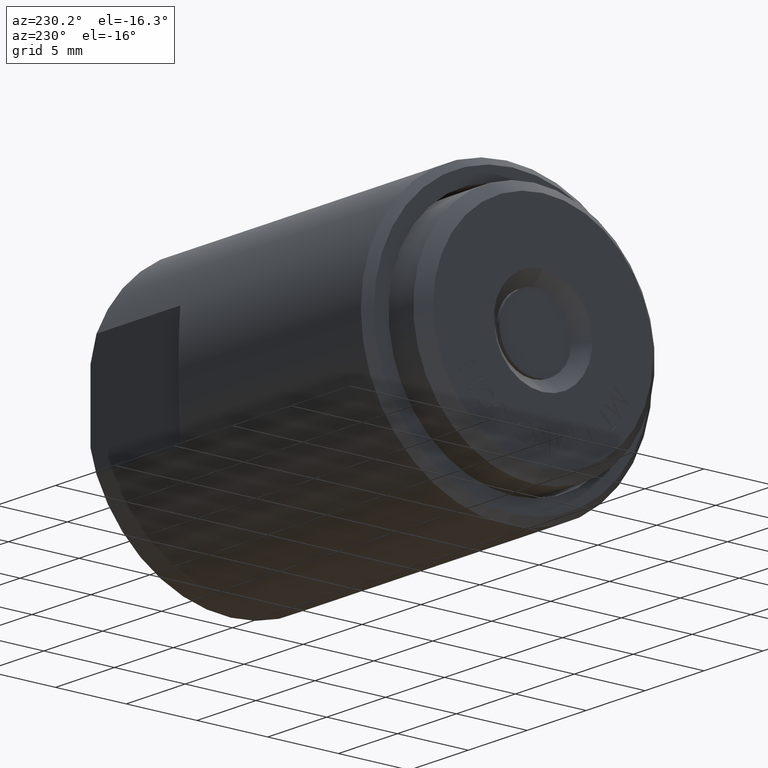
[diagram: clean part render]
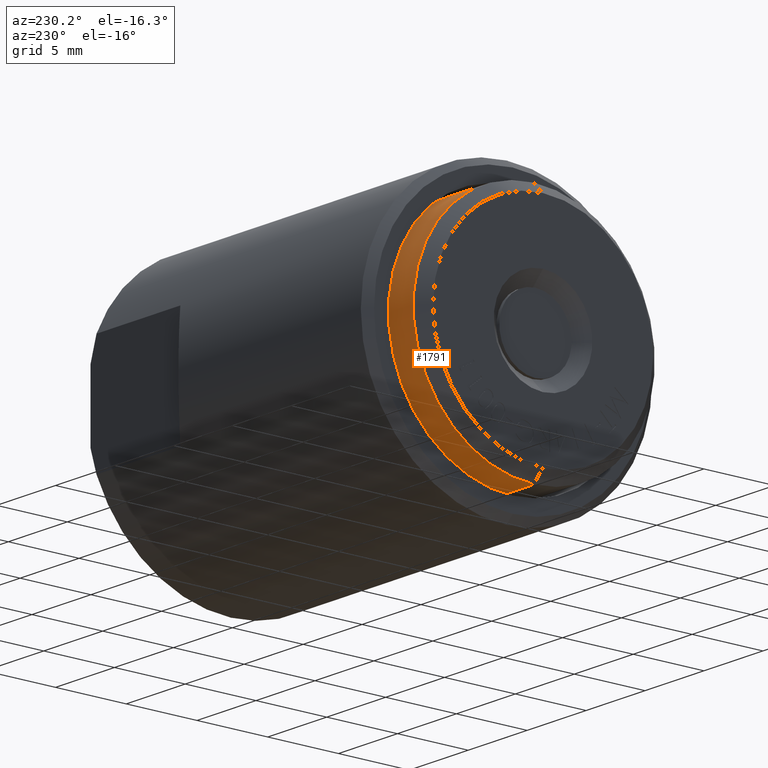
[diagram: same view with one face highlighted and labeled with its STEP entity id]
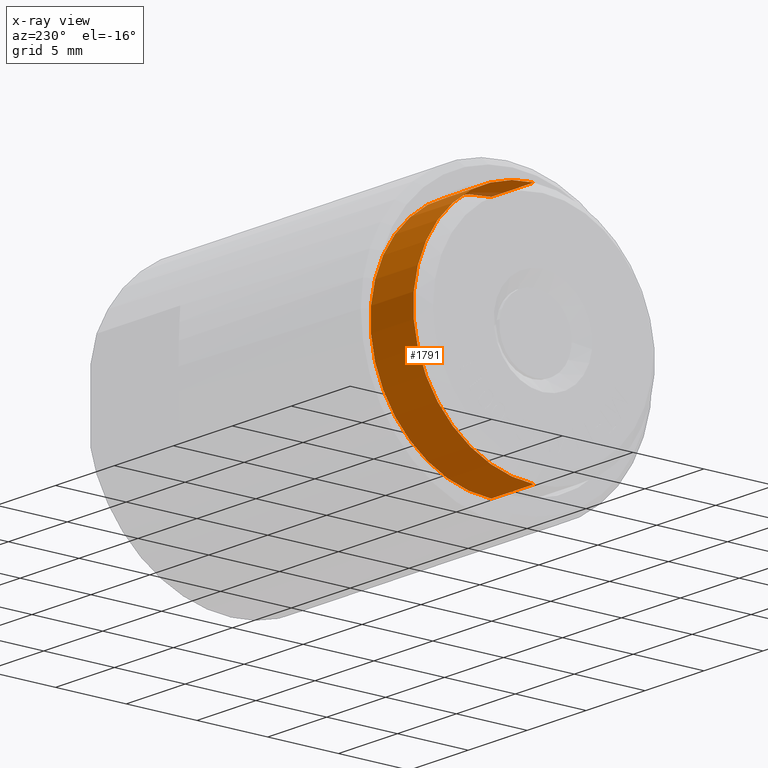
[diagram: x-ray of the same camera — body ghosted, the highlighted face saturated]
A machine part, auxiliary view. The second image highlights one B-rep face of the part: STEP entity #1791.
The next image is the same camera in x-ray: the body ghosted, the highlighted face saturated — about 1% of this face is hidden behind the body in this view.
In plain terms, the highlighted cylindrical surface (partial cylindrical patch) has radius 8.5344 mm, axis along (-1, -0, -0).
Its self-contained STEP definition (entity closure, byte-faithful):
#260 = EDGE_CURVE ( 'NONE', #10603, #6384, #1472, .T. ) ;
#417 = ORIENTED_EDGE ( 'NONE', *, *, #2439, .F. ) ;
#451 = AXIS2_PLACEMENT_3D ( 'NONE', #3066, #7274, #8292 ) ;
#753 = CARTESIAN_POINT ( 'NONE',  ( 0.0000000000000000000, 4.114813245135106909E-17, -0.3360000000000000764 ) ) ;
#918 = CARTESIAN_POINT ( 'NONE',  ( -0.07699999999999997125, 0.0000000000000000000, 0.3360000000000000764 ) ) ;
#1472 = LINE ( 'NONE', #9678, #3694 ) ;
#1791 = ADVANCED_FACE ( 'NONE', ( #10249 ), #10475, .T. ) ;
#2439 = EDGE_CURVE ( 'NONE', #6384, #7009, #9422, .T. ) ;
#3066 = CARTESIAN_POINT ( 'NONE',  ( 0.0000000000000000000, 0.0000000000000000000, 0.0000000000000000000 ) ) ;
#3144 = DIRECTION ( 'NONE',  ( -1.000000000000000000, -0.0000000000000000000, -0.0000000000000000000 ) ) ;
#3412 = DIRECTION ( 'NONE',  ( 0.0000000000000000000, 0.0000000000000000000, 1.000000000000000000 ) ) ;
#3694 = VECTOR ( 'NONE', #9508, 39.37007874015748143 ) ;
#4343 = VECTOR ( 'NONE', #8998, 39.37007874015748143 ) ;
#4364 = CARTESIAN_POINT ( 'NONE',  ( -0.2200000000000000011, 4.114813245135106909E-17, -0.3360000000000000764 ) ) ;
#4560 = CIRCLE ( 'NONE', #9236, 0.3360000000000000764 ) ;
#5100 = EDGE_CURVE ( 'NONE', #10603, #7662, #4560, .T. ) ;
#5189 = ORIENTED_EDGE ( 'NONE', *, *, #260, .F. ) ;
#5236 = CARTESIAN_POINT ( 'NONE',  ( -0.07699999999999997125, 0.0000000000000000000, 0.0000000000000000000 ) ) ;
#6099 = DIRECTION ( 'NONE',  ( -1.000000000000000000, -0.0000000000000000000, -0.0000000000000000000 ) ) ;
#6129 = CARTESIAN_POINT ( 'NONE',  ( -0.2200000000000000011, 0.0000000000000000000, 0.3360000000000000764 ) ) ;
#6384 = VERTEX_POINT ( 'NONE', #6129 ) ;
#6633 = EDGE_CURVE ( 'NONE', #7662, #7009, #8136, .T. ) ;
#6661 = AXIS2_PLACEMENT_3D ( 'NONE', #7248, #3144, #9852 ) ;
#6823 = ORIENTED_EDGE ( 'NONE', *, *, #5100, .T. ) ;
#7009 = VERTEX_POINT ( 'NONE', #4364 ) ;
#7248 = CARTESIAN_POINT ( 'NONE',  ( -0.2200000000000000011, 0.0000000000000000000, 0.0000000000000000000 ) ) ;
#7274 = DIRECTION ( 'NONE',  ( -1.000000000000000000, -0.0000000000000000000, -0.0000000000000000000 ) ) ;
#7662 = VERTEX_POINT ( 'NONE', #8725 ) ;
#8046 = ORIENTED_EDGE ( 'NONE', *, *, #6633, .T. ) ;
#8136 = LINE ( 'NONE', #753, #4343 ) ;
#8292 = DIRECTION ( 'NONE',  ( 0.0000000000000000000, 0.0000000000000000000, 1.000000000000000000 ) ) ;
#8725 = CARTESIAN_POINT ( 'NONE',  ( -0.07699999999999997125, 4.114813245135106909E-17, -0.3360000000000000764 ) ) ;
#8998 = DIRECTION ( 'NONE',  ( -1.000000000000000000, -0.0000000000000000000, -0.0000000000000000000 ) ) ;
#9236 = AXIS2_PLACEMENT_3D ( 'NONE', #5236, #6099, #3412 ) ;
#9422 = CIRCLE ( 'NONE', #6661, 0.3360000000000000764 ) ;
#9508 = DIRECTION ( 'NONE',  ( -1.000000000000000000, -0.0000000000000000000, -0.0000000000000000000 ) ) ;
#9548 = EDGE_LOOP ( 'NONE', ( #6823, #8046, #417, #5189 ) ) ;
#9678 = CARTESIAN_POINT ( 'NONE',  ( 0.0000000000000000000, 0.0000000000000000000, 0.3360000000000000764 ) ) ;
#9852 = DIRECTION ( 'NONE',  ( 0.0000000000000000000, 0.0000000000000000000, 1.000000000000000000 ) ) ;
#10249 = FACE_OUTER_BOUND ( 'NONE', #9548, .T. ) ;
#10475 = CYLINDRICAL_SURFACE ( 'NONE', #451, 0.3360000000000000764 ) ;
#10603 = VERTEX_POINT ( 'NONE', #918 ) ;